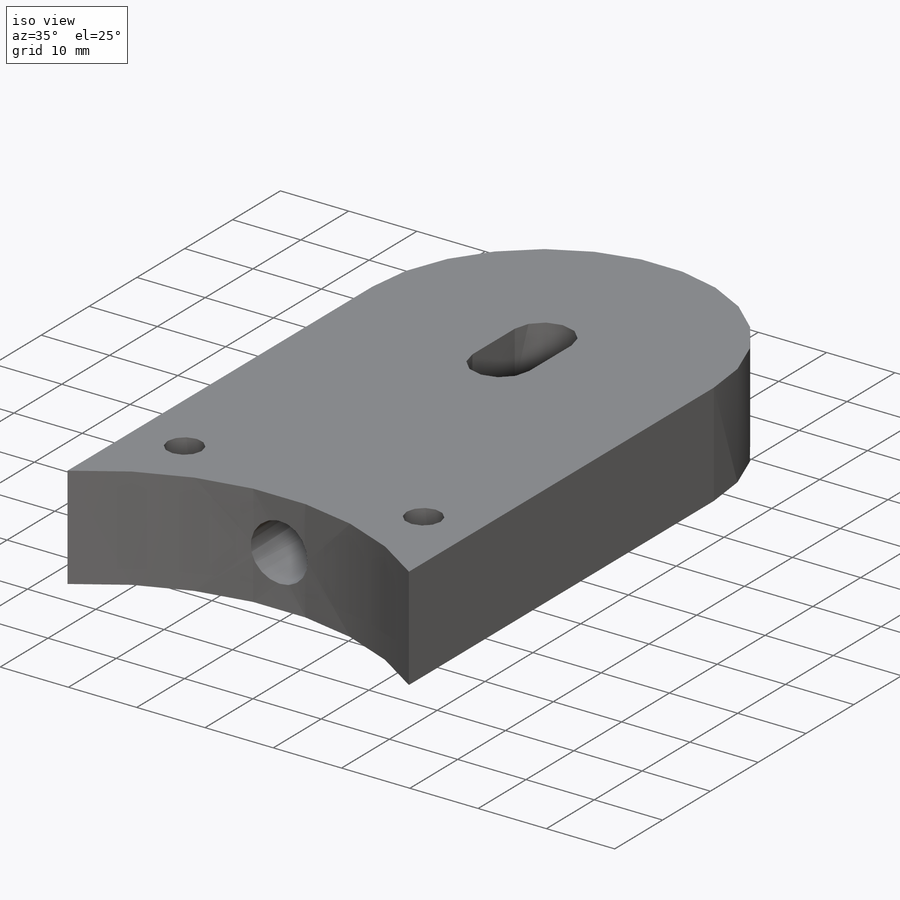
[diagram: iso view]
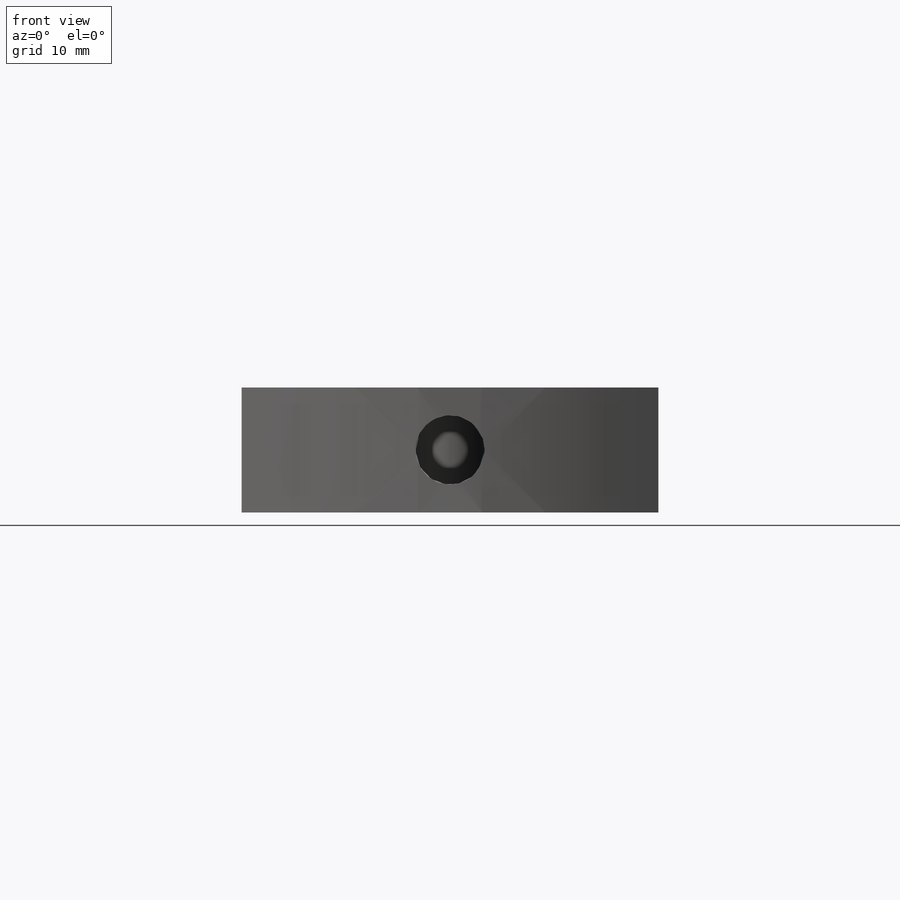
[diagram: front view]
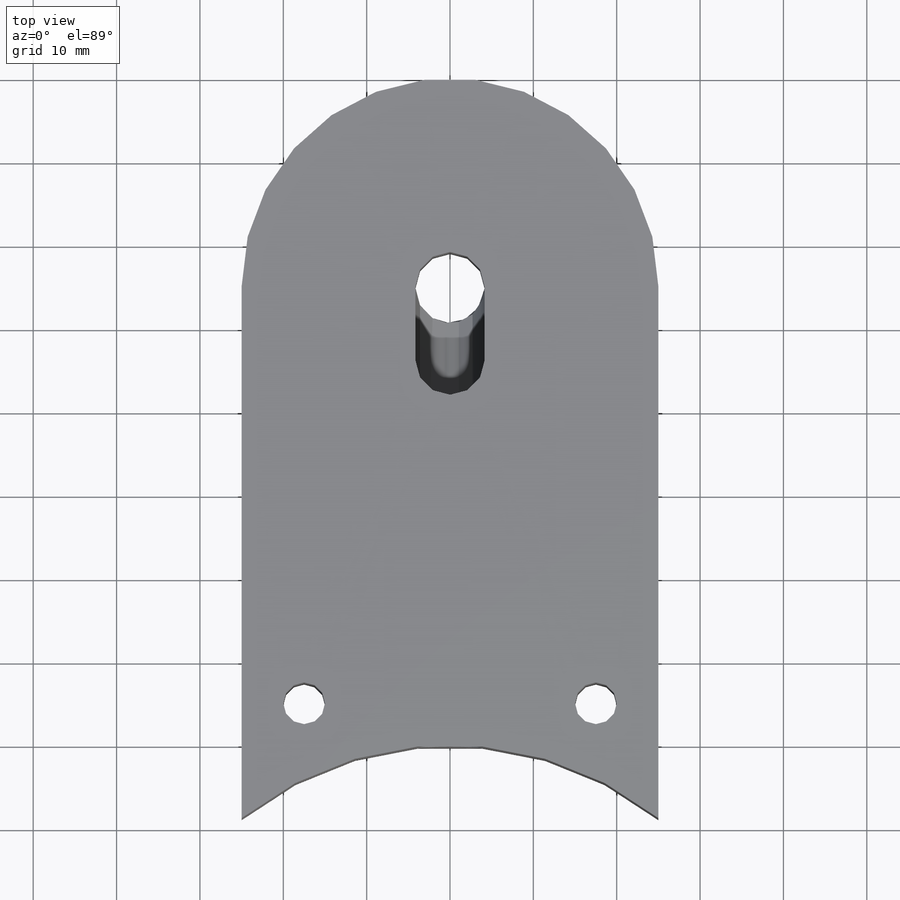
[diagram: top view]
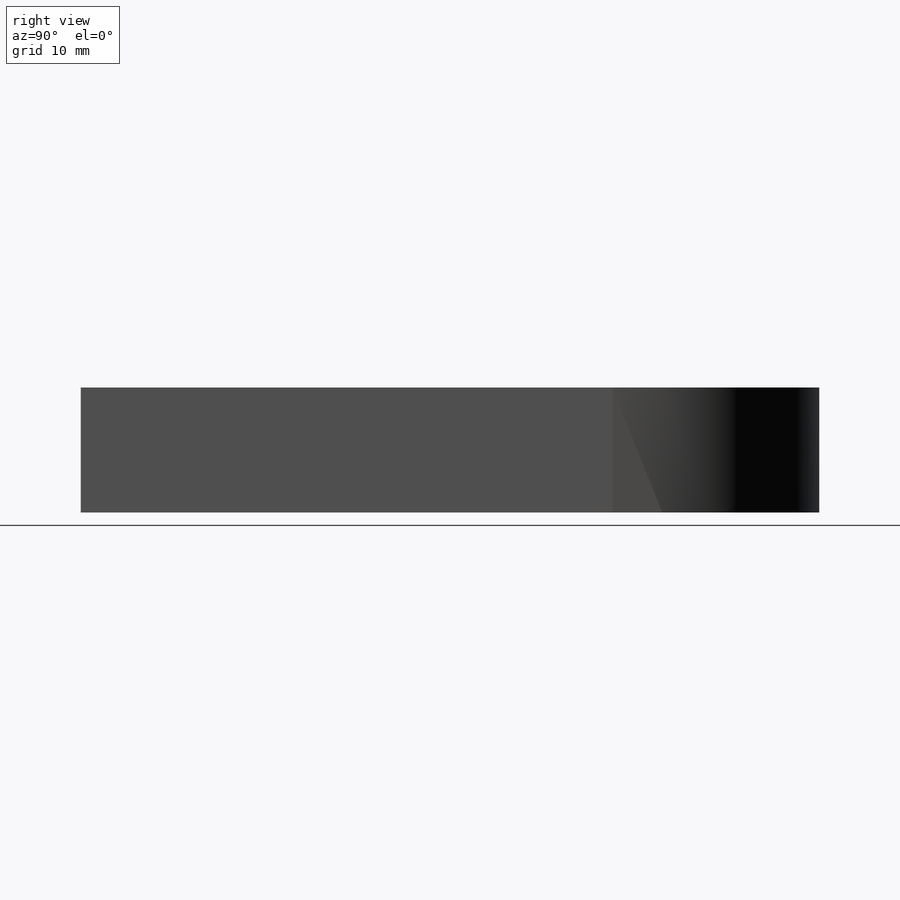
[diagram: right view]
SOLIDWORKS PART (.sldprt)
format: sldprt  version: not decoded by parser v0  size: 401,408 bytes
history: native  units: mm
features: sketch x5, plane x3, cut_extrude x2, thread x2, material x1, extrude x1, hole x1 (+8 scaffold rows collapsed)
feature tree (23):
  scaffold x8  (default folders/planes/origin — collapsed)
  material  "Matériau <non spécifié>"
  plane  "Plan de face"
  plane  "Plan de dessus"
  plane  "Plan de droite"
  sketch  "Esquisse1"  dims[c1.D1=80.0mm c1.D6=50.0mm c2.D1=~223.745591mm c2.D3=50.0mm c3.D1=25.0mm c3.D2=25.0mm c3.D3=80.0mm c3.D4=80.0mm c3.D5=25.0mm]
  extrude  "Boss.-Extru.1"  Depth=15mm
  sketch  "Esquisse2"  dims[D1=15.0mm]
  cut_extrude  "Enlèv. mat.-Extru.1"  [1 undecoded]
  sketch  "Esquisse3"  dims[c1.D2=8.3mm c1.D3=8.3mm c1.D1=8.3mm c2.D2=~0.479226mm c2.D1=13.0mm c3.D2=4.15mm]
  cut_extrude  "Enlèv. mat.-Extru.2"  Depth=7.5mm
  hole  "Trou taraudé M6x1.01"  Diameter=5mm Depth=15mm
  sketch  "Esquisse5"  dims[D1=~35.355339mm]
  sketch  "Esquisse4"  dims[hole-wizard template sketch: 59 standard entries collapsed; hole parameters kept: c18.Diamètre du trou pour taraudage jusqu'au prochain=5.0mm c18.Profondeur du trou pour taraudage jusqu'au prochain=15.0mm]
  thread  "Filetage de perçage1"  Diameter=6mm  [1 undecoded]
  thread  "Filetage de perçage2"  Diameter=6mm  [1 undecoded]
decode coverage: 10 of 11 modeling features carry decoded parameters
note: ~ marks probable driven/reference dimensions
note: 3 parameter values undecoded
note: suppression state not decoded; provenance and decode notes live in map.json
